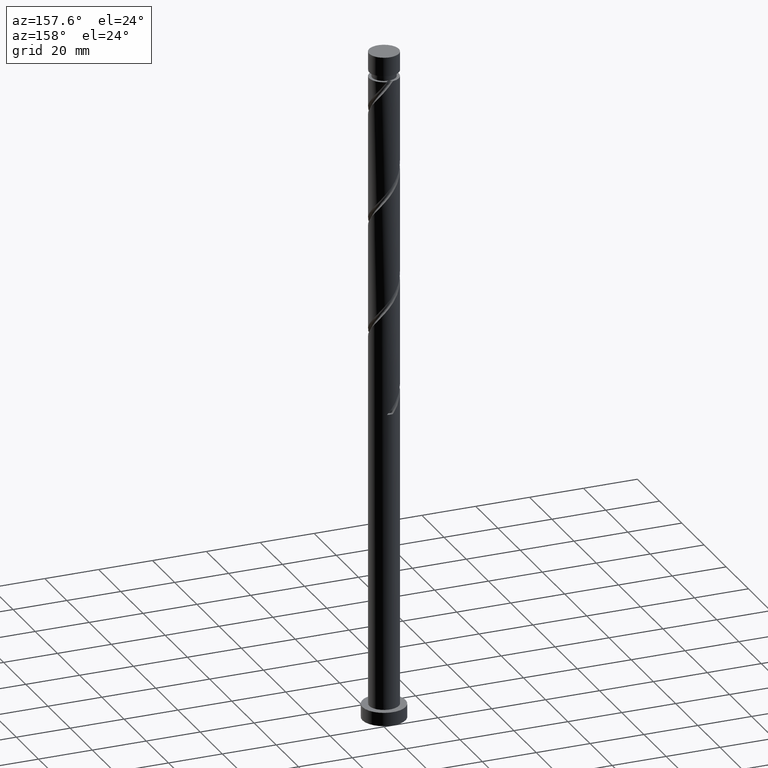
[diagram: clean part render]
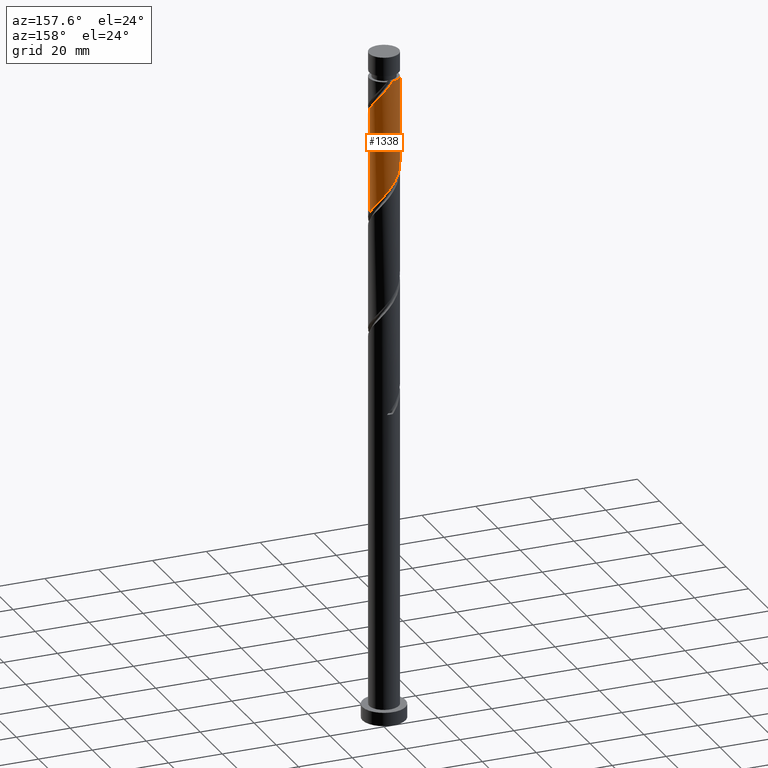
[diagram: same view with one face highlighted and labeled with its STEP entity id]
A machine part, auxiliary view. The second image highlights one B-rep face of the part: STEP entity #1338.
In plain terms, the highlighted cylindrical surface (edge-blend (fillet) strip) has radius 5.5 mm, axis along (-0, -0, -1).
Its self-contained STEP definition (entity closure, byte-faithful):
#16 = EDGE_CURVE ( 'NONE', #460, #754, #1655, .T. ) ;
#22 = CARTESIAN_POINT ( 'NONE',  ( -5.499999999999982236, 0.000000000000000000, 240.7912338368553833 ) ) ;
#44 = DIRECTION ( 'NONE',  ( -1.000000000000000000, 0.000000000000000000, 0.000000000000000000 ) ) ;
#70 = CARTESIAN_POINT ( 'NONE',  ( 4.651627399556062414, 2.934682697618155700, 232.7784133240348581 ) ) ;
#72 = CARTESIAN_POINT ( 'NONE',  ( 2.352593832060372314, 4.971448708510575187, 197.5220030676246381 ) ) ;
#92 = EDGE_CURVE ( 'NONE', #202, #268, #933, .T. ) ;
#198 = CARTESIAN_POINT ( 'NONE',  ( 5.500000000000006217, -3.051011460790486732E-15, 229.0466452942968374 ) ) ;
#202 = VERTEX_POINT ( 'NONE', #1262 ) ;
#214 = CARTESIAN_POINT ( 'NONE',  ( 0.4400216912492997956, 5.522894682684190926, 199.9258492214707701 ) ) ;
#224 = CARTESIAN_POINT ( 'NONE',  ( -5.482626562209551579, 0.4368134376988147549, 210.3425158881374557 ) ) ;
#232 = CARTESIAN_POINT ( 'NONE',  ( -5.500000000000000000, 0.2187522168522220145, 210.6049847971142981 ) ) ;
#249 = LINE ( 'NONE', #834, #1811 ) ;
#268 = VERTEX_POINT ( 'NONE', #1599 ) ;
#351 = CARTESIAN_POINT ( 'NONE',  ( -0.8944797491683068591, 5.467713484000326751, 201.5284133240348581 ) ) ;
#359 = CARTESIAN_POINT ( 'NONE',  ( 5.500000000000000000, 6.735557395310442023E-16, 250.0000000000000000 ) ) ;
#377 = CARTESIAN_POINT ( 'NONE',  ( -3.332995637836967617, 4.425734384590987780, 204.7335415291630909 ) ) ;
#404 = CARTESIAN_POINT ( 'NONE',  ( 5.499999999999999112, 8.255678070374312555E-15, 190.0358223794139860 ) ) ;
#460 = VERTEX_POINT ( 'NONE', #22 ) ;
#491 = CARTESIAN_POINT ( 'NONE',  ( -2.176997277865850844, 5.094768651956226968, 203.1309774265990029 ) ) ;
#492 = CARTESIAN_POINT ( 'NONE',  ( 3.332995637836976055, 4.425734384590986892, 235.1822594778810753 ) ) ;
#499 = CARTESIAN_POINT ( 'NONE',  ( -3.814144022060085959, 3.962613453137121766, 205.5348235804450781 ) ) ;
#507 = CARTESIAN_POINT ( 'NONE',  ( -5.500000000000000000, -2.692068935991622587E-16, 210.8691557127472720 ) ) ;
#526 = CARTESIAN_POINT ( 'NONE',  ( 5.429587808306036045, 1.102524828149341829, 230.3745671701886693 ) ) ;
#531 = DIRECTION ( 'NONE',  ( -0.000000000000000000, -0.000000000000000000, -1.000000000000000000 ) ) ;
#536 = CARTESIAN_POINT ( 'NONE',  ( 4.393465797984363874, 3.308694347010859182, 194.3168748624964337 ) ) ;
#541 = CARTESIAN_POINT ( 'NONE',  ( 0.000000000000000000, 0.000000000000000000, 250.0000000000000000 ) ) ;
#550 = ORIENTED_EDGE ( 'NONE', *, *, #92, .T. ) ;
#633 = CARTESIAN_POINT ( 'NONE',  ( 1.535738513517085790, 5.281241067978283077, 237.5861056317271789 ) ) ;
#638 = CARTESIAN_POINT ( 'NONE',  ( 2.956236993735471330, 4.685792099705351710, 196.7207210163426225 ) ) ;
#644 = EDGE_CURVE ( 'NONE', #460, #1231, #249, .T. ) ;
#678 = FACE_OUTER_BOUND ( 'NONE', #1144, .T. ) ;
#686 = CARTESIAN_POINT ( 'NONE',  ( 5.482626562209559573, 0.4368134376988108691, 229.5732851189066537 ) ) ;
#696 = CARTESIAN_POINT ( 'NONE',  ( 4.795214027474705709, 2.775231016600423928, 193.5155928112143044 ) ) ;
#752 = ORIENTED_EDGE ( 'NONE', *, *, #942, .F. ) ;
#754 = VERTEX_POINT ( 'NONE', #1594 ) ;
#783 =( BOUNDED_CURVE ( )  B_SPLINE_CURVE ( 2, ( #507, #232, #224, #1367, #801, #1628, #1669, #1657, #499, #377, #1230, #491, #1058, #351, #914, #214, #1066, #1350, #72, #638, #1637, #1572, #536, #696, #1821, #1831, #846, #1689, #404 ),
 .UNSPECIFIED., .F., .T. ) 
 B_SPLINE_CURVE_WITH_KNOTS ( ( 3, 2, 2, 2, 2, 2, 2, 2, 2, 2, 2, 2, 2, 2, 3 ),
 ( 0.4295271625973832164, 0.4326923076923077094, 0.4423076923076922906, 0.4519230769230769273, 0.4615384615384615641, 0.4711538461538461453, 0.4807692307692307820, 0.4903846153846153633, 0.5000000000000000000, 0.5096153846153845812, 0.5192307692307692735, 0.5288461538461538547, 0.5384615384615384359, 0.5480769230769231282, 0.5545271625973831053 ),
 .UNSPECIFIED. ) 
 CURVE ( )  GEOMETRIC_REPRESENTATION_ITEM ( )  RATIONAL_B_SPLINE_CURVE ( ( 0.9061636035682764101, 0.9069090390690650594, 0.9090909090909216062, 0.9024626128164251471, 0.9090909090909216062, 0.9024626128164251471, 0.9090909090909216062, 0.9024626128164251471, 0.9090909090909216062, 0.9024626128164251471, 0.9090909090909216062, 0.9024626128164251471, 0.9090909090909216062, 0.9024626128164251471, 0.9090909090909216062, 0.9024626128164251471, 0.9090909090909216062, 0.9024626128164251471, 0.9090909090909216062, 0.9024626128164251471, 0.9090909090909216062, 0.9024626128164251471, 0.9090909090909216062, 0.9024626128164251471, 0.9090909090909216062, 0.9024626128164251471, 0.9090909090909216062, 0.9046444828382818049, 0.9061636035682762991 ) ) 
 REPRESENTATION_ITEM ( '' )  );
#796 = AXIS2_PLACEMENT_3D ( 'NONE', #1638, #1378, #1629 ) ;
#801 = CARTESIAN_POINT ( 'NONE',  ( -5.218775100567468073, 1.736198850851197184, 208.7399517855733677 ) ) ;
#803 = CARTESIAN_POINT ( 'NONE',  ( 4.295292406283214071, 3.499492521683256641, 233.5796953753169305 ) ) ;
#810 = ORIENTED_EDGE ( 'NONE', *, *, #1358, .F. ) ;
#834 = CARTESIAN_POINT ( 'NONE',  ( -5.500000000000000000, 0.000000000000000000, 250.0000000000000000 ) ) ;
#846 = CARTESIAN_POINT ( 'NONE',  ( 5.427847696592713156, 0.8879579847003798987, 191.1117466573682009 ) ) ;
#892 = ORIENTED_EDGE ( 'NONE', *, *, #644, .F. ) ;
#911 = CARTESIAN_POINT ( 'NONE',  ( 5.500000000000006217, 0.2187522168522099686, 229.3108162099297829 ) ) ;
#914 = CARTESIAN_POINT ( 'NONE',  ( -0.2272290289595038371, 5.495304083342259283, 200.7271312727527572 ) ) ;
#933 = LINE ( 'NONE', #359, #1480 ) ;
#942 = EDGE_CURVE ( 'NONE', #1231, #268, #783, .T. ) ;
#947 = CYLINDRICAL_SURFACE ( 'NONE', #1550, 5.500000000000000000 ) ;
#994 = CARTESIAN_POINT ( 'NONE',  ( -5.500000000000000000, -2.692068935991623080E-16, 210.8691557127472720 ) ) ;
#1040 = CARTESIAN_POINT ( 'NONE',  ( 2.754996457851415226, 4.760251518273611815, 235.9835415291630341 ) ) ;
#1058 = CARTESIAN_POINT ( 'NONE',  ( -1.535738513517079129, 5.281241067978278636, 202.3296953753169305 ) ) ;
#1066 = CARTESIAN_POINT ( 'NONE',  ( 1.094486180817285215, 5.389999999999998792, 199.1245671701886977 ) ) ;
#1068 = CARTESIAN_POINT ( 'NONE',  ( -0.4400216912492886934, 5.522894682684198919, 239.9899517855733393 ) ) ;
#1083 = DIRECTION ( 'NONE',  ( -0.000000000000000000, -0.000000000000000000, -1.000000000000000000 ) ) ;
#1097 = CARTESIAN_POINT ( 'NONE',  ( 5.218775100567474290, 1.736198850851194075, 231.1758492214707132 ) ) ;
#1144 = EDGE_LOOP ( 'NONE', ( #810, #550, #752, #892, #1318 ) ) ;
#1163 =( BOUNDED_CURVE ( )  B_SPLINE_CURVE ( 2, ( #198, #911, #686, #526, #1097, #1247, #70, #803, #1195, #492, #1040, #1769, #633, #1212, #1336, #1068, #1639 ),
 .UNSPECIFIED., .F., .T. ) 
 B_SPLINE_CURVE_WITH_KNOTS ( ( 3, 2, 2, 2, 2, 2, 2, 2, 3 ),
 ( 0.6795271625973831053, 0.6826923076923077094, 0.6923076923076922906, 0.7019230769230768718, 0.7115384615384615641, 0.7211538461538460343, 0.7307692307692307265, 0.7403846153846153078, 0.7499999999999998890 ),
 .UNSPECIFIED. ) 
 CURVE ( )  GEOMETRIC_REPRESENTATION_ITEM ( )  RATIONAL_B_SPLINE_CURVE ( ( 0.9061636035682820722, 0.9069090390690707215, 0.9090909090909273793, 0.9024626128164308092, 0.9090909090909273793, 0.9024626128164308092, 0.9090909090909273793, 0.9024626128164308092, 0.9090909090909273793, 0.9024626128164308092, 0.9090909090909273793, 0.9024626128164308092, 0.9090909090909273793, 0.9024626128164308092, 0.9090909090909273793, 0.9024626128164309202, 0.9090909090909272683 ) ) 
 REPRESENTATION_ITEM ( '' )  );
#1195 = CARTESIAN_POINT ( 'NONE',  ( 3.814144022060093508, 3.962613453137125319, 234.3809774265989461 ) ) ;
#1212 = CARTESIAN_POINT ( 'NONE',  ( 0.8944797491683117441, 5.467713484000335633, 238.3873876830092513 ) ) ;
#1230 = CARTESIAN_POINT ( 'NONE',  ( -2.754996457851408120, 4.760251518273608262, 203.9322594778810469 ) ) ;
#1231 = VERTEX_POINT ( 'NONE', #994 ) ;
#1247 = CARTESIAN_POINT ( 'NONE',  ( 5.007962392828913423, 2.369872873553051207, 231.9771312727527572 ) ) ;
#1262 = CARTESIAN_POINT ( 'NONE',  ( 5.500000000000006217, -3.051011460790486732E-15, 229.0466452942968374 ) ) ;
#1318 = ORIENTED_EDGE ( 'NONE', *, *, #16, .T. ) ;
#1336 = CARTESIAN_POINT ( 'NONE',  ( 0.2272290289595099988, 5.495304083342267276, 239.1886697342912385 ) ) ;
#1338 = ADVANCED_FACE ( 'NONE', ( #678 ), #947, .T. ) ;
#1350 = CARTESIAN_POINT ( 'NONE',  ( 1.748950670385271078, 5.257105317315805770, 198.3232851189067105 ) ) ;
#1358 = EDGE_CURVE ( 'NONE', #202, #754, #1163, .T. ) ;
#1367 = CARTESIAN_POINT ( 'NONE',  ( -5.429587808306028940, 1.102524828149342717, 209.5412338368553833 ) ) ;
#1378 = DIRECTION ( 'NONE',  ( -0.000000000000000000, -0.000000000000000000, -1.000000000000000000 ) ) ;
#1480 = VECTOR ( 'NONE', #1647, 1000.000000000000000 ) ;
#1550 = AXIS2_PLACEMENT_3D ( 'NONE', #541, #1083, #44 ) ;
#1572 = CARTESIAN_POINT ( 'NONE',  ( 3.991717568494021595, 3.842157677421293549, 195.1181569137784493 ) ) ;
#1594 = CARTESIAN_POINT ( 'NONE',  ( -1.094486180817280996, 5.389999999999981917, 240.7912338368552980 ) ) ;
#1599 = CARTESIAN_POINT ( 'NONE',  ( 5.499999999999999112, 8.255678070374312555E-15, 190.0358223794139860 ) ) ;
#1628 = CARTESIAN_POINT ( 'NONE',  ( -5.007962392828906317, 2.369872873553050763, 207.9386697342912669 ) ) ;
#1629 = DIRECTION ( 'NONE',  ( -1.000000000000000000, 0.000000000000000000, 0.000000000000000000 ) ) ;
#1637 = CARTESIAN_POINT ( 'NONE',  ( 3.473977281114747573, 4.263974888563319965, 195.9194389650605501 ) ) ;
#1638 = CARTESIAN_POINT ( 'NONE',  ( 0.000000000000000000, 0.000000000000000000, 240.7912338368553833 ) ) ;
#1639 = CARTESIAN_POINT ( 'NONE',  ( -1.094486180817280996, 5.389999999999981917, 240.7912338368552980 ) ) ;
#1647 = DIRECTION ( 'NONE',  ( -0.000000000000000000, -0.000000000000000000, -1.000000000000000000 ) ) ;
#1655 = CIRCLE ( 'NONE', #796, 5.499999999999982236 ) ;
#1657 = CARTESIAN_POINT ( 'NONE',  ( -4.295292406283205189, 3.499492521683255752, 206.3361056317271789 ) ) ;
#1669 = CARTESIAN_POINT ( 'NONE',  ( -4.651627399556055309, 2.934682697618153924, 207.1373876830092229 ) ) ;
#1689 = CARTESIAN_POINT ( 'NONE',  ( 5.499999999999997335, 0.4469104119537618547, 190.5755231167622981 ) ) ;
#1769 = CARTESIAN_POINT ( 'NONE',  ( 2.176997277865856617, 5.094768651956234962, 236.7848235804450781 ) ) ;
#1811 = VECTOR ( 'NONE', #531, 1000.000000000000000 ) ;
#1821 = CARTESIAN_POINT ( 'NONE',  ( 5.057622052273528013, 2.161124516624735481, 192.7143107599323457 ) ) ;
#1831 = CARTESIAN_POINT ( 'NONE',  ( 5.320030077072353869, 1.547018016649043259, 191.9130287086503017 ) ) ;